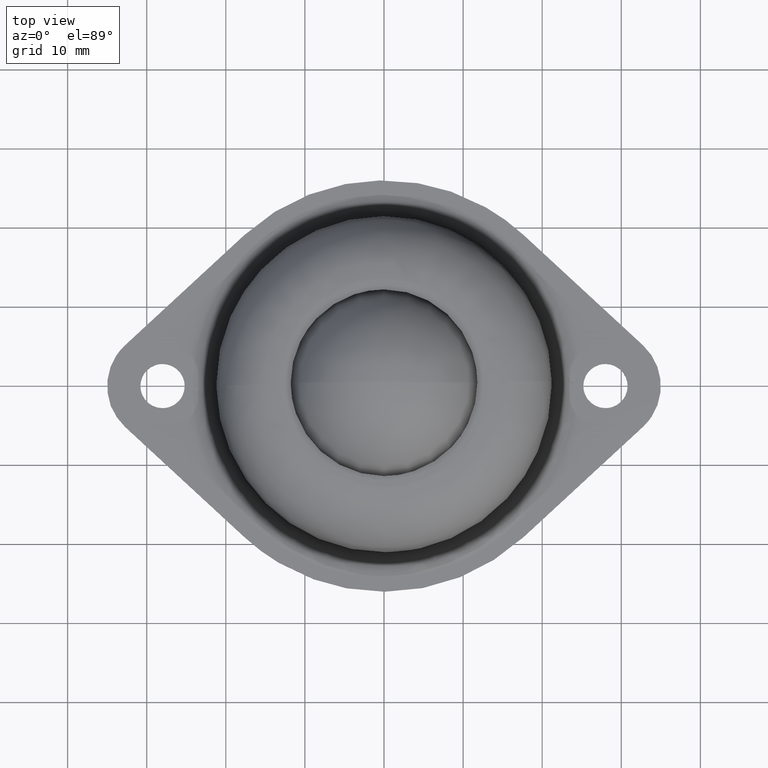
[diagram: clean part render]
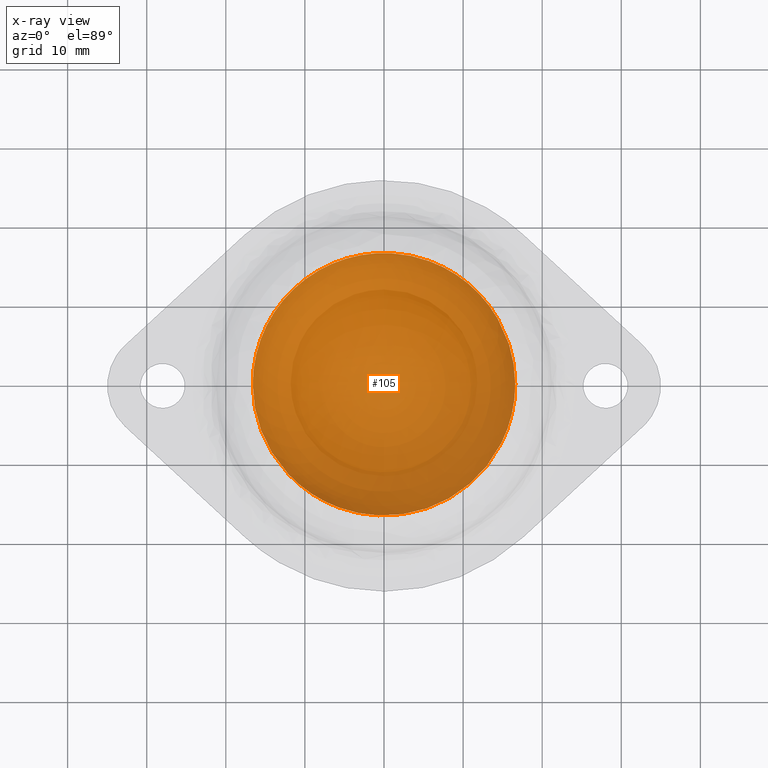
[diagram: x-ray — body ghosted, one internal face saturated and labeled with its STEP entity id]
A machine part, top view, then the same camera in x-ray: the body is ghosted and one INTERNAL B-rep face — a face not visible from any outside direction — is saturated and labeled: STEP entity #105.
In plain terms, the highlighted face is a freeform B-spline surface patch.
Its self-contained STEP definition (entity closure, byte-faithful):
#5=CARTESIAN_POINT('',(-12.493293234638008,12.493293234641493,19.674767848274481));
#6=CARTESIAN_POINT('',(-8.485421345359267,16.970842690739886,13.683867315277285));
#7=CARTESIAN_POINT('',(8.485421345437651,16.970842690739886,13.683867315410014));
#8=CARTESIAN_POINT('',(12.493293234622687,12.493293234641493,19.674767848469905));
#9=CARTESIAN_POINT('',(-16.970842690757721,8.485421345341424,13.683867315307484));
#10=CARTESIAN_POINT('',(-13.225330052486070,13.225330052423081,0.999999999746059));
#11=CARTESIAN_POINT('',(13.225330052762860,13.225330052423081,0.999999999952927));
#12=CARTESIAN_POINT('',(16.970842690836111,8.485421345341424,13.683867315572950));
#13=CARTESIAN_POINT('',(-16.970842690757721,-8.485421345455494,13.683867315500628));
#14=CARTESIAN_POINT('',(-13.225330052486070,-13.225330052825850,1.000000000047088));
#15=CARTESIAN_POINT('',(13.225330052762860,-13.225330052825850,1.000000000253955));
#16=CARTESIAN_POINT('',(16.970842690836111,-8.485421345455494,13.683867315766092));
#17=CARTESIAN_POINT('',(-12.493293234638008,-12.493293234619205,19.674767848558844));
#18=CARTESIAN_POINT('',(-8.485421345359267,-16.970842690853949,13.683867315663562));
#19=CARTESIAN_POINT('',(8.485421345437651,-16.970842690853949,13.683867315796292));
#20=CARTESIAN_POINT('',(12.493293234622687,-12.493293234619205,19.674767848754264));
#28=(BOUNDED_SURFACE()B_SPLINE_SURFACE(2,2,((#5,#9,#13,#17),(#6,#10,#14,#18),(#7,#11,#15,#19),(#8,#12,#16,#20)),.UNSPECIFIED.,.F.,.F.,.U.)B_SPLINE_SURFACE_WITH_KNOTS((3,1,3),(3,1,3),(0.0,20.675930716741359,41.351861433482718),(0.0,20.675930716741359,41.351861433482718),.UNSPECIFIED.)GEOMETRIC_REPRESENTATION_ITEM()RATIONAL_B_SPLINE_SURFACE(((2.117188767484457,1.558594383742229,1.558594383742229,2.117188767484457),(1.558594383742229,1.0,1.0,1.558594383742229),(1.558594383742229,1.0,1.0,1.558594383742229),(2.117188767484457,1.558594383742229,1.558594383742229,2.117188767484457)))REPRESENTATION_ITEM('')SURFACE());
#29=CARTESIAN_POINT('',(-5.718800153810520,-15.576792583138261,12.548529431164580));
#30=VERTEX_POINT('',#29);
#31=CARTESIAN_POINT('',(-16.593406593406591,0.0,12.548529430902260));
#32=VERTEX_POINT('',#31);
#33=CARTESIAN_POINT('',(-5.718800153810520,-15.576792583138261,12.548529431164580));
#34=CARTESIAN_POINT('',(-6.534675790645290,-15.277318580085220,12.548529431154790));
#35=CARTESIAN_POINT('',(-7.999127395924260,-14.604833044586981,12.548529431135449));
#36=CARTESIAN_POINT('',(-9.903262279488063,-13.369107978304889,12.548529431106619));
#37=CARTESIAN_POINT('',(-11.777074710500001,-11.785073816057359,12.548529431073611));
#38=CARTESIAN_POINT('',(-13.579382687869010,-9.706125802760223,12.548529431036039));
#39=CARTESIAN_POINT('',(-15.027206308106660,-7.212967921838216,12.548529430996309));
#40=CARTESIAN_POINT('',(-15.896451796860450,-4.916421596704953,12.548529430963439));
#41=CARTESIAN_POINT('',(-16.451446961719629,-2.580927538480058,12.548529430932600));
#42=CARTESIAN_POINT('',(-16.593510296901538,-0.974450808500744,12.548529430913320));
#43=CARTESIAN_POINT('',(-16.593406593406591,0.0,12.548529430902260));
#44=B_SPLINE_CURVE_WITH_KNOTS('',3,(#33,#34,#35,#36,#37,#38,#39,#40,#41,#42,#43),.UNSPECIFIED.,.F.,.U.,(4,1,1,1,1,1,1,1,4),(0.000000024493385,2.607295129487742,4.819559780160653,6.794794500181522,9.955163739239756,13.036504902032769,15.406791994008760,17.303023284710179,20.226352116472970),.UNSPECIFIED.);
#45=EDGE_CURVE('',#30,#32,#44,.T.);
#46=ORIENTED_EDGE('',*,*,#45,.F.);
#47=CARTESIAN_POINT('',(16.593406593406598,0.0,12.548529430902260));
#48=VERTEX_POINT('',#47);
#49=CARTESIAN_POINT('',(16.593406593406598,0.0,12.548529430902260));
#50=CARTESIAN_POINT('',(16.593700361713040,-1.287787999377408,12.548529430909349));
#51=CARTESIAN_POINT('',(16.335747761018251,-3.489309041564274,12.548529430923571));
#52=CARTESIAN_POINT('',(15.391743789504799,-6.382032512178189,12.548529430946971));
#53=CARTESIAN_POINT('',(14.309632254132399,-8.495656178599313,12.548529430967200));
#54=CARTESIAN_POINT('',(12.961580376749160,-10.446884139956460,12.548529430988649));
#55=CARTESIAN_POINT('',(11.268754795315839,-12.287838650460230,12.548529431012080));
#56=CARTESIAN_POINT('',(9.223777995073840,-13.869313641328540,12.548529431037091));
#57=CARTESIAN_POINT('',(7.223533272734613,-14.983034392910080,12.548529431058970));
#58=CARTESIAN_POINT('',(5.066687464818802,-15.864457149871299,12.548529431080940));
#59=CARTESIAN_POINT('',(2.636698209448491,-16.462901122630988,12.548529431103420));
#60=CARTESIAN_POINT('',(-0.231020451731331,-16.671094310241529,12.548529431127250));
#61=CARTESIAN_POINT('',(-3.012564434527819,-16.401809739952569,12.548529431147751));
#62=CARTESIAN_POINT('',(-4.860912556739655,-15.891812225106330,12.548529431159540));
#63=CARTESIAN_POINT('',(-5.718800153810520,-15.576792583138261,12.548529431164580));
#64=B_SPLINE_CURVE_WITH_KNOTS('',3,(#49,#50,#51,#52,#53,#54,#55,#56,#57,#58,#59,#60,#61,#62,#63),.UNSPECIFIED.,.F.,.U.,(4,1,1,1,1,1,1,1,1,1,1,1,4),(0.000000041506365,3.863289231186048,6.605008136605775,9.097473931134466,10.966830698266980,13.708548471680031,16.574818648746842,18.693411755623529,20.562781068986041,23.553729709059208,26.170813392320429,29.161771235522920,31.903466221156400),.UNSPECIFIED.);
#65=EDGE_CURVE('',#48,#30,#64,.T.);
#66=ORIENTED_EDGE('',*,*,#65,.F.);
#67=CARTESIAN_POINT('',(5.718800153810521,15.576792583138261,12.548529431164580));
#68=VERTEX_POINT('',#67);
#69=CARTESIAN_POINT('',(5.718800153810521,15.576792583138261,12.548529431164580));
#70=CARTESIAN_POINT('',(6.584126539527961,15.259179963591571,12.548529431154110));
#71=CARTESIAN_POINT('',(8.045905432164439,14.579434066635100,12.548529431134980));
#72=CARTESIAN_POINT('',(10.274603364408220,13.118061560562049,12.548529431100620));
#73=CARTESIAN_POINT('',(12.213111435681940,11.356804952793119,12.548529431065550));
#74=CARTESIAN_POINT('',(14.042106916943951,8.997481175741569,12.548529431024370));
#75=CARTESIAN_POINT('',(15.240054394764300,6.728052045237359,12.548529430988820));
#76=CARTESIAN_POINT('',(16.042592908179731,4.409713547609701,12.548529430956680));
#77=CARTESIAN_POINT('',(16.487765484925010,2.291253333886196,12.548529430928941));
#78=CARTESIAN_POINT('',(16.593438933158239,0.763752402061946,12.548529430910920));
#79=CARTESIAN_POINT('',(16.593406593406598,0.0,12.548529430902260));
#80=B_SPLINE_CURVE_WITH_KNOTS('',3,(#69,#70,#71,#72,#73,#74,#75,#76,#77,#78,#79),.UNSPECIFIED.,.F.,.U.,(4,1,1,1,1,1,1,1,4),(0.000000024494401,2.765312803921908,4.819559780161921,7.979940208229484,10.587217305515781,13.747595033036911,15.643821541173290,17.935097244924819,20.226352116472992),.UNSPECIFIED.);
#81=EDGE_CURVE('',#68,#48,#80,.T.);
#82=ORIENTED_EDGE('',*,*,#81,.F.);
#83=CARTESIAN_POINT('',(-16.593406593406591,0.0,12.548529430902260));
#84=CARTESIAN_POINT('',(-16.593579354252778,1.121613181826385,12.548529430908459));
#85=CARTESIAN_POINT('',(-16.415790007006589,2.866248906969536,12.548529430919480));
#86=CARTESIAN_POINT('',(-15.712224790773281,5.520660617048620,12.548529430939711));
#87=CARTESIAN_POINT('',(-14.840097532355420,7.551961801874635,12.548529430957760));
#88=CARTESIAN_POINT('',(-13.647538480045791,9.504508805655238,12.548529430978020));
#89=CARTESIAN_POINT('',(-12.235502553199179,11.306613952954150,12.548529430999100));
#90=CARTESIAN_POINT('',(-10.499484269015250,12.930937146145331,12.548529431021880));
#91=CARTESIAN_POINT('',(-8.475676943593633,14.321228310422210,12.548529431045360));
#92=CARTESIAN_POINT('',(-6.545409854117274,15.303054256367670,12.548529431066180));
#93=CARTESIAN_POINT('',(-4.580040607043311,15.987959121125270,12.548529431085440));
#94=CARTESIAN_POINT('',(-2.630972142719017,16.421617109489521,12.548529431103240));
#95=CARTESIAN_POINT('',(-0.519204697971960,16.638913358707821,12.548529431121141));
#96=CARTESIAN_POINT('',(1.520692758577020,16.564568363161559,12.548529431136860));
#97=CARTESIAN_POINT('',(3.656558736007041,16.227331271541502,12.548529431151870));
#98=CARTESIAN_POINT('',(4.938902084704014,15.863167909525250,12.548529431160009));
#99=CARTESIAN_POINT('',(5.718800153810521,15.576792583138261,12.548529431164580));
#100=B_SPLINE_CURVE_WITH_KNOTS('',3,(#83,#84,#85,#86,#87,#88,#89,#90,#91,#92,#93,#94,#95,#96,#97,#98,#99),.UNSPECIFIED.,.F.,.U.,(4,1,1,1,1,1,1,1,1,1,1,1,1,1,4),(0.000000041510543,3.364799647673550,5.234148896586515,8.225114174694195,9.969842345079542,12.088439435092610,15.079377701944100,17.073310269072270,19.441152312065199,21.559752212228378,23.304485647284640,25.423076651342011,27.915551299254460,29.411026733248018,31.903466221156378),.UNSPECIFIED.);
#101=EDGE_CURVE('',#32,#68,#100,.T.);
#102=ORIENTED_EDGE('',*,*,#101,.F.);
#103=EDGE_LOOP('',(#46,#66,#82,#102));
#104=FACE_OUTER_BOUND('',#103,.T.);
#105=ADVANCED_FACE('',(#104),#28,.F.);